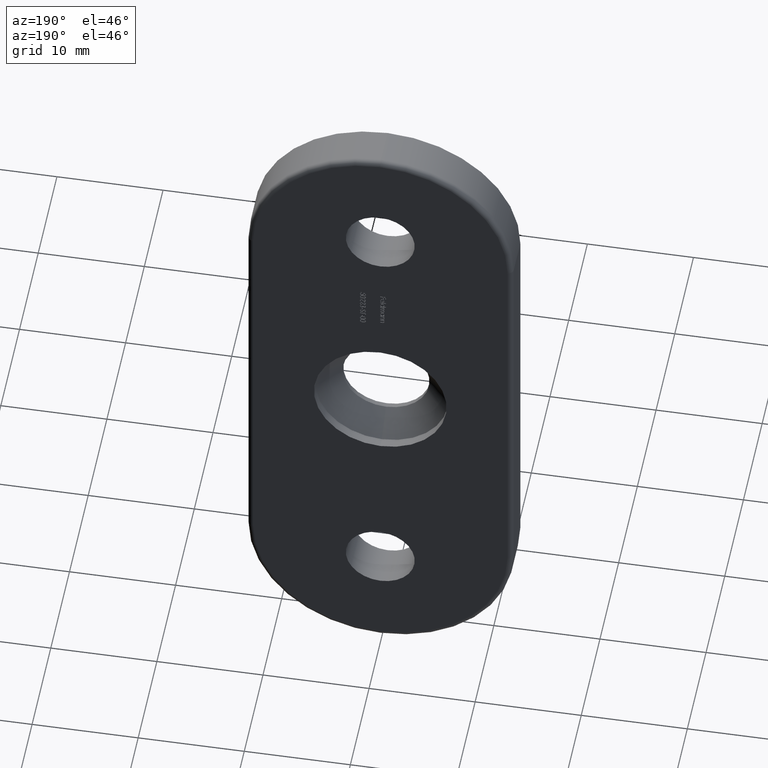
[diagram: clean part render]
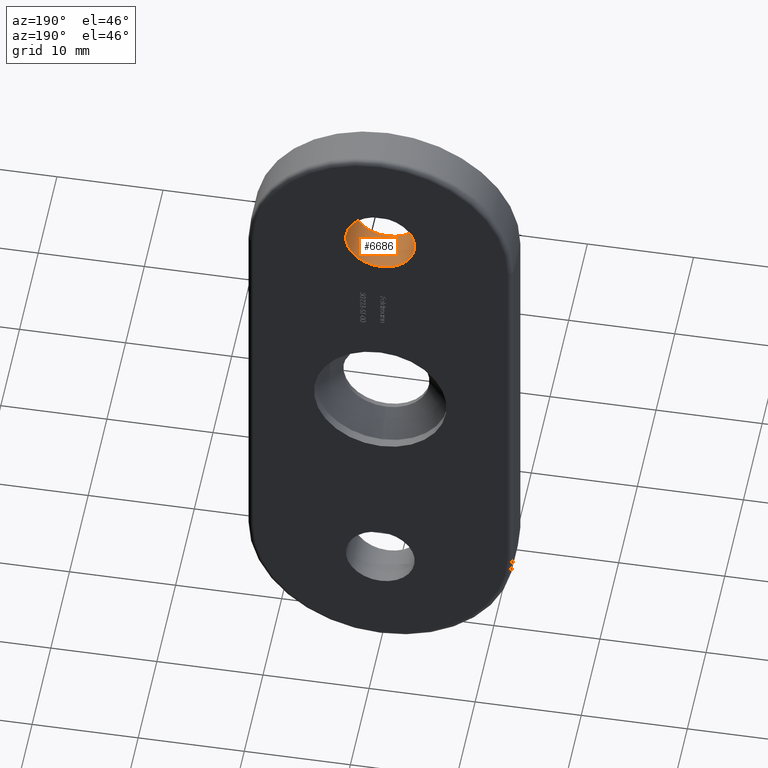
[diagram: same view with one face highlighted and labeled with its STEP entity id]
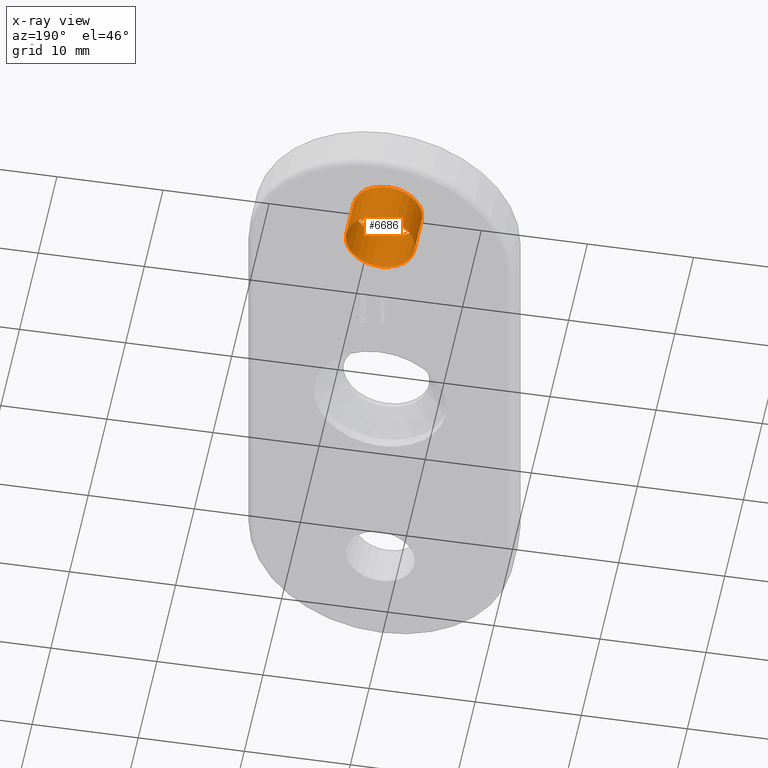
[diagram: x-ray of the same camera — body ghosted, the highlighted face saturated]
A machine part, auxiliary view. The second image highlights one B-rep face of the part: STEP entity #6686.
The next image is the same camera in x-ray: the body ghosted, the highlighted face saturated — about 0% of this face is hidden behind the body in this view.
In plain terms, the highlighted cylindrical surface (bore or boss wall) has radius 3.25 mm, axis along (-0, 1, -0).
Its self-contained STEP definition (entity closure, byte-faithful):
#428 = AXIS2_PLACEMENT_3D ( 'NONE', #12826, #4802, #4897 ) ;
#736 = CARTESIAN_POINT ( 'NONE',  ( 0.000000000000000000, 4.000000000000000000, 24.25000000000000000 ) ) ;
#1354 = EDGE_LOOP ( 'NONE', ( #12445 ) ) ;
#2065 = CARTESIAN_POINT ( 'NONE',  ( 0.000000000000000000, 0.000000000000000000, 21.00000000000000000 ) ) ;
#2238 = DIRECTION ( 'NONE',  ( 0.000000000000000000, 1.000000000000000000, 0.000000000000000000 ) ) ;
#2648 = VERTEX_POINT ( 'NONE', #736 ) ;
#4802 = DIRECTION ( 'NONE',  ( 0.000000000000000000, 1.000000000000000000, 0.000000000000000000 ) ) ;
#4897 = DIRECTION ( 'NONE',  ( 0.000000000000000000, 0.000000000000000000, 1.000000000000000000 ) ) ;
#4937 = AXIS2_PLACEMENT_3D ( 'NONE', #5817, #2238, #10413 ) ;
#5466 = ORIENTED_EDGE ( 'NONE', *, *, #13304, .F. ) ;
#5817 = CARTESIAN_POINT ( 'NONE',  ( 0.000000000000000000, 4.000000000000000000, 21.00000000000000000 ) ) ;
#6230 = CYLINDRICAL_SURFACE ( 'NONE', #8491, 3.249999999999999556 ) ;
#6605 = FACE_OUTER_BOUND ( 'NONE', #11042, .T. ) ;
#6686 = ADVANCED_FACE ( 'NONE', ( #6605, #9288 ), #6230, .F. ) ;
#7709 = CIRCLE ( 'NONE', #4937, 3.249999999999999556 ) ;
#8409 = CIRCLE ( 'NONE', #428, 3.249999999999999556 ) ;
#8491 = AXIS2_PLACEMENT_3D ( 'NONE', #2065, #14775, #14855 ) ;
#9288 = FACE_OUTER_BOUND ( 'NONE', #1354, .T. ) ;
#10413 = DIRECTION ( 'NONE',  ( 0.000000000000000000, 0.000000000000000000, 1.000000000000000000 ) ) ;
#11042 = EDGE_LOOP ( 'NONE', ( #5466 ) ) ;
#11144 = VERTEX_POINT ( 'NONE', #11182 ) ;
#11182 = CARTESIAN_POINT ( 'NONE',  ( 0.000000000000000000, 0.000000000000000000, 24.25000000000000000 ) ) ;
#12435 = EDGE_CURVE ( 'NONE', #2648, #2648, #7709, .T. ) ;
#12445 = ORIENTED_EDGE ( 'NONE', *, *, #12435, .T. ) ;
#12826 = CARTESIAN_POINT ( 'NONE',  ( 0.000000000000000000, 0.000000000000000000, 21.00000000000000000 ) ) ;
#13304 = EDGE_CURVE ( 'NONE', #11144, #11144, #8409, .T. ) ;
#14775 = DIRECTION ( 'NONE',  ( -0.000000000000000000, 1.000000000000000000, -0.000000000000000000 ) ) ;
#14855 = DIRECTION ( 'NONE',  ( 0.000000000000000000, 0.000000000000000000, 1.000000000000000000 ) ) ;